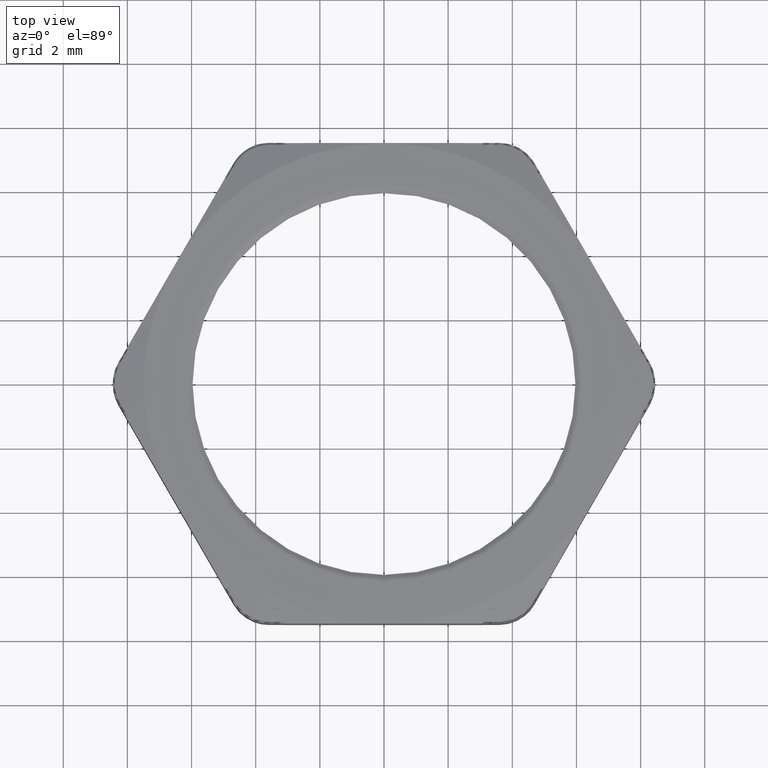
[diagram: clean part render]
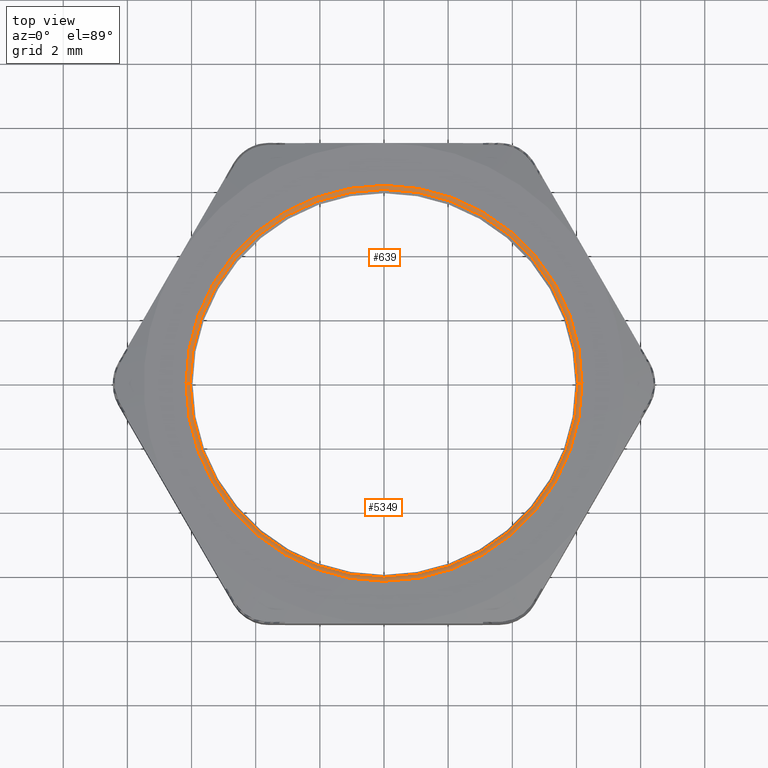
[diagram: same view with one multi-face feature highlighted, each face labeled with its STEP entity id]
A machine part, top view. The highlighted faces form ONE feature: a constant-radius fillet chain: 2 tangent blend faces with common blend radius 0.2032 mm. The faces share edges in the B-rep.
Their STEP definitions:
[1] entity #639 (Torus):
#550 = VERTEX_POINT ( 'NONE', #1932 ) ;
#551 = VERTEX_POINT ( 'NONE', #1931 ) ;
#630 = EDGE_CURVE ( 'NONE', #551, #636, #2099, .T. ) ;
#631 = ORIENTED_EDGE ( 'NONE', *, *, #640, .T. ) ;
#633 = EDGE_LOOP ( 'NONE', ( #637, #631, #634, #646 ) ) ;
#634 = ORIENTED_EDGE ( 'NONE', *, *, #635, .F. ) ;
#635 = EDGE_CURVE ( 'NONE', #636, #641, #2090, .T. ) ;
#636 = VERTEX_POINT ( 'NONE', #2085 ) ;
#637 = ORIENTED_EDGE ( 'NONE', *, *, #638, .T. ) ;
#638 = EDGE_CURVE ( 'NONE', #551, #550, #2083, .T. ) ;
#639 = ADVANCED_FACE ( 'NONE', ( #2084 ), #2077, .T. ) ;
#640 = EDGE_CURVE ( 'NONE', #550, #641, #2073, .T. ) ;
#641 = VERTEX_POINT ( 'NONE', #2068 ) ;
#646 = ORIENTED_EDGE ( 'NONE', *, *, #630, .F. ) ;
#1931 = CARTESIAN_POINT ( 'NONE',  ( -0.2380166820241974600, 0.0000000000000000000, 0.1082583178212701400 ) ) ;
#1932 = CARTESIAN_POINT ( 'NONE',  ( 0.2380166820241974600, 2.945377699887067500E-017, 0.1082583178212701400 ) ) ;
#2068 = CARTESIAN_POINT ( 'NONE',  ( 0.2429999999999999700, 2.975891721928067900E-017, 0.1100000000000000000 ) ) ;
#2069 = DIRECTION ( 'NONE',  ( -1.000000000000000000, -1.224646799147354900E-016, 0.0000000000000000000 ) ) ;
#2070 = DIRECTION ( 'NONE',  ( -1.224646799147353200E-016, 1.000000000000000000, 0.0000000000000000000 ) ) ;
#2071 = CARTESIAN_POINT ( 'NONE',  ( 0.2429999999999999700, 2.975891721928067900E-017, 0.1019999999999999900 ) ) ;
#2072 = AXIS2_PLACEMENT_3D ( 'NONE', #2071, #2070, #2069 ) ;
#2073 = CIRCLE ( 'NONE', #2072, 0.007999999999999989800 ) ;
#2074 = DIRECTION ( 'NONE',  ( -1.000000000000000000, 0.0000000000000000000, 0.0000000000000000000 ) ) ;
#2075 = DIRECTION ( 'NONE',  ( 0.0000000000000000000, 0.0000000000000000000, -1.000000000000000000 ) ) ;
#2076 = AXIS2_PLACEMENT_3D ( 'NONE', #2078, #2075, #2074 ) ;
#2077 = TOROIDAL_SURFACE ( 'NONE', #2076, 0.2429999999999999700, 0.008000000000000000200 ) ;
#2078 = CARTESIAN_POINT ( 'NONE',  ( 0.0000000000000000000, 0.0000000000000000000, 0.1019999999999999900 ) ) ;
#2079 = DIRECTION ( 'NONE',  ( -1.000000000000000000, 0.0000000000000000000, 0.0000000000000000000 ) ) ;
#2080 = DIRECTION ( 'NONE',  ( 0.0000000000000000000, 0.0000000000000000000, -1.000000000000000000 ) ) ;
#2081 = CARTESIAN_POINT ( 'NONE',  ( 0.0000000000000000000, 0.0000000000000000000, 0.1082583178212701400 ) ) ;
#2082 = AXIS2_PLACEMENT_3D ( 'NONE', #2081, #2080, #2079 ) ;
#2083 = CIRCLE ( 'NONE', #2082, 0.2380166820241974600 ) ;
#2084 = FACE_OUTER_BOUND ( 'NONE', #633, .T. ) ;
#2085 = CARTESIAN_POINT ( 'NONE',  ( -0.2429999999999999700, 0.0000000000000000000, 0.1100000000000000000 ) ) ;
#2086 = DIRECTION ( 'NONE',  ( -1.000000000000000000, 0.0000000000000000000, 0.0000000000000000000 ) ) ;
#2087 = DIRECTION ( 'NONE',  ( 0.0000000000000000000, 0.0000000000000000000, -1.000000000000000000 ) ) ;
#2088 = CARTESIAN_POINT ( 'NONE',  ( 0.0000000000000000000, 0.0000000000000000000, 0.1100000000000000000 ) ) ;
#2089 = AXIS2_PLACEMENT_3D ( 'NONE', #2088, #2087, #2086 ) ;
#2090 = CIRCLE ( 'NONE', #2089, 0.2429999999999999700 ) ;
#2095 = DIRECTION ( 'NONE',  ( 0.0000000000000000000, 0.0000000000000000000, -1.000000000000000000 ) ) ;
#2096 = DIRECTION ( 'NONE',  ( 0.0000000000000000000, -1.000000000000000000, 0.0000000000000000000 ) ) ;
#2097 = CARTESIAN_POINT ( 'NONE',  ( -0.2429999999999999700, 0.0000000000000000000, 0.1019999999999999900 ) ) ;
#2098 = AXIS2_PLACEMENT_3D ( 'NONE', #2097, #2096, #2095 ) ;
#2099 = CIRCLE ( 'NONE', #2098, 0.008000000000000007100 ) ;
[2] entity #5349 (Torus):
#549 = EDGE_CURVE ( 'NONE', #550, #551, #1879, .T. ) ;
#550 = VERTEX_POINT ( 'NONE', #1932 ) ;
#551 = VERTEX_POINT ( 'NONE', #1931 ) ;
#630 = EDGE_CURVE ( 'NONE', #551, #636, #2099, .T. ) ;
#636 = VERTEX_POINT ( 'NONE', #2085 ) ;
#640 = EDGE_CURVE ( 'NONE', #550, #641, #2073, .T. ) ;
#641 = VERTEX_POINT ( 'NONE', #2068 ) ;
#1879 = CIRCLE ( 'NONE', #1936, 0.2380166820241974600 ) ;
#1931 = CARTESIAN_POINT ( 'NONE',  ( -0.2380166820241974600, 0.0000000000000000000, 0.1082583178212701400 ) ) ;
#1932 = CARTESIAN_POINT ( 'NONE',  ( 0.2380166820241974600, 2.945377699887067500E-017, 0.1082583178212701400 ) ) ;
#1933 = DIRECTION ( 'NONE',  ( -1.000000000000000000, 0.0000000000000000000, 0.0000000000000000000 ) ) ;
#1934 = DIRECTION ( 'NONE',  ( 0.0000000000000000000, 0.0000000000000000000, -1.000000000000000000 ) ) ;
#1935 = CARTESIAN_POINT ( 'NONE',  ( 0.0000000000000000000, 0.0000000000000000000, 0.1082583178212701400 ) ) ;
#1936 = AXIS2_PLACEMENT_3D ( 'NONE', #1935, #1934, #1933 ) ;
#2068 = CARTESIAN_POINT ( 'NONE',  ( 0.2429999999999999700, 2.975891721928067900E-017, 0.1100000000000000000 ) ) ;
#2069 = DIRECTION ( 'NONE',  ( -1.000000000000000000, -1.224646799147354900E-016, 0.0000000000000000000 ) ) ;
#2070 = DIRECTION ( 'NONE',  ( -1.224646799147353200E-016, 1.000000000000000000, 0.0000000000000000000 ) ) ;
#2071 = CARTESIAN_POINT ( 'NONE',  ( 0.2429999999999999700, 2.975891721928067900E-017, 0.1019999999999999900 ) ) ;
#2072 = AXIS2_PLACEMENT_3D ( 'NONE', #2071, #2070, #2069 ) ;
#2073 = CIRCLE ( 'NONE', #2072, 0.007999999999999989800 ) ;
#2085 = CARTESIAN_POINT ( 'NONE',  ( -0.2429999999999999700, 0.0000000000000000000, 0.1100000000000000000 ) ) ;
#2095 = DIRECTION ( 'NONE',  ( 0.0000000000000000000, 0.0000000000000000000, -1.000000000000000000 ) ) ;
#2096 = DIRECTION ( 'NONE',  ( 0.0000000000000000000, -1.000000000000000000, 0.0000000000000000000 ) ) ;
#2097 = CARTESIAN_POINT ( 'NONE',  ( -0.2429999999999999700, 0.0000000000000000000, 0.1019999999999999900 ) ) ;
#2098 = AXIS2_PLACEMENT_3D ( 'NONE', #2097, #2096, #2095 ) ;
#2099 = CIRCLE ( 'NONE', #2098, 0.008000000000000007100 ) ;
#3350 = DIRECTION ( 'NONE',  ( -1.000000000000000000, 0.0000000000000000000, 0.0000000000000000000 ) ) ;
#3351 = DIRECTION ( 'NONE',  ( 0.0000000000000000000, 0.0000000000000000000, -1.000000000000000000 ) ) ;
#3352 = CARTESIAN_POINT ( 'NONE',  ( 0.0000000000000000000, 0.0000000000000000000, 0.1019999999999999900 ) ) ;
#3353 = AXIS2_PLACEMENT_3D ( 'NONE', #3352, #3351, #3350 ) ;
#3354 = TOROIDAL_SURFACE ( 'NONE', #3353, 0.2429999999999999700, 0.008000000000000000200 ) ;
#3355 = FACE_OUTER_BOUND ( 'NONE', #5350, .T. ) ;
#4999 = DIRECTION ( 'NONE',  ( -1.000000000000000000, 0.0000000000000000000, 0.0000000000000000000 ) ) ;
#5000 = DIRECTION ( 'NONE',  ( 0.0000000000000000000, 0.0000000000000000000, -1.000000000000000000 ) ) ;
#5001 = CARTESIAN_POINT ( 'NONE',  ( 0.0000000000000000000, 0.0000000000000000000, 0.1100000000000000000 ) ) ;
#5002 = AXIS2_PLACEMENT_3D ( 'NONE', #5001, #5000, #4999 ) ;
#5003 = CIRCLE ( 'NONE', #5002, 0.2429999999999999700 ) ;
#5329 = ORIENTED_EDGE ( 'NONE', *, *, #6332, .F. ) ;
#5349 = ADVANCED_FACE ( 'NONE', ( #3355 ), #3354, .T. ) ;
#5350 = EDGE_LOOP ( 'NONE', ( #5351, #5352, #5353, #5329 ) ) ;
#5351 = ORIENTED_EDGE ( 'NONE', *, *, #640, .F. ) ;
#5352 = ORIENTED_EDGE ( 'NONE', *, *, #549, .T. ) ;
#5353 = ORIENTED_EDGE ( 'NONE', *, *, #630, .T. ) ;
#6332 = EDGE_CURVE ( 'NONE', #641, #636, #5003, .T. ) ;